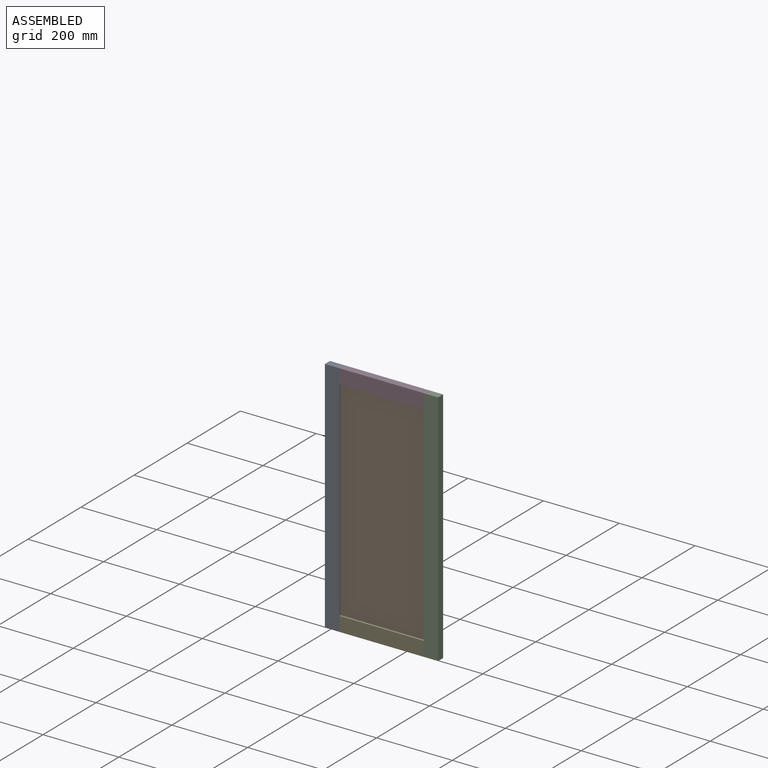
[diagram: assembled view]
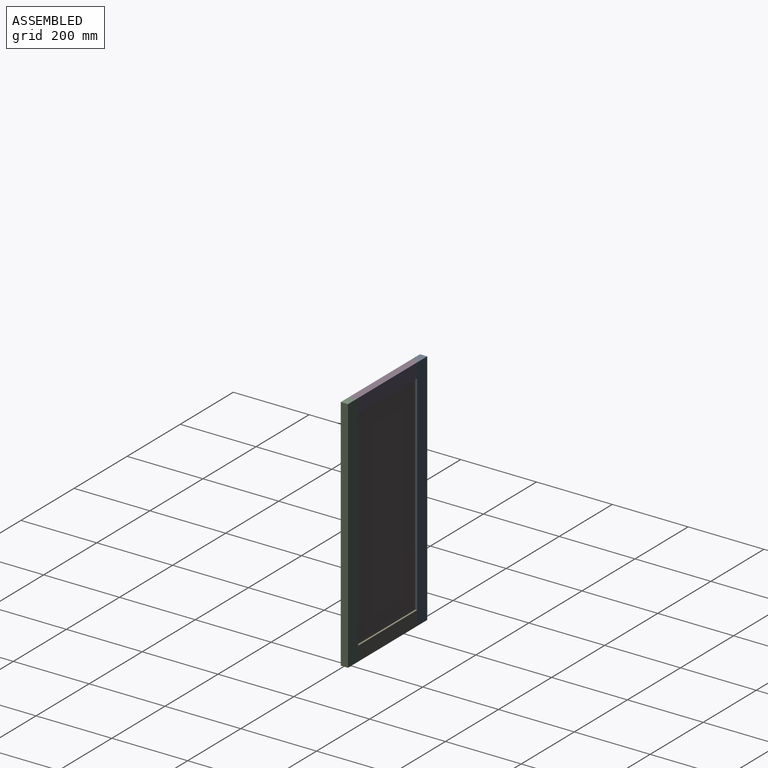
[diagram: assembled view, second angle]
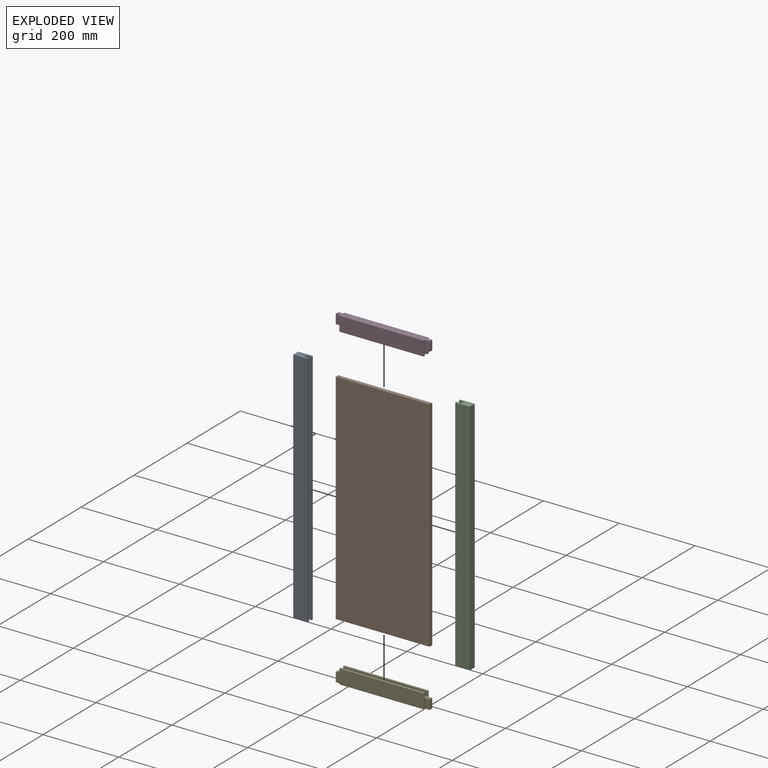
[diagram: exploded view]
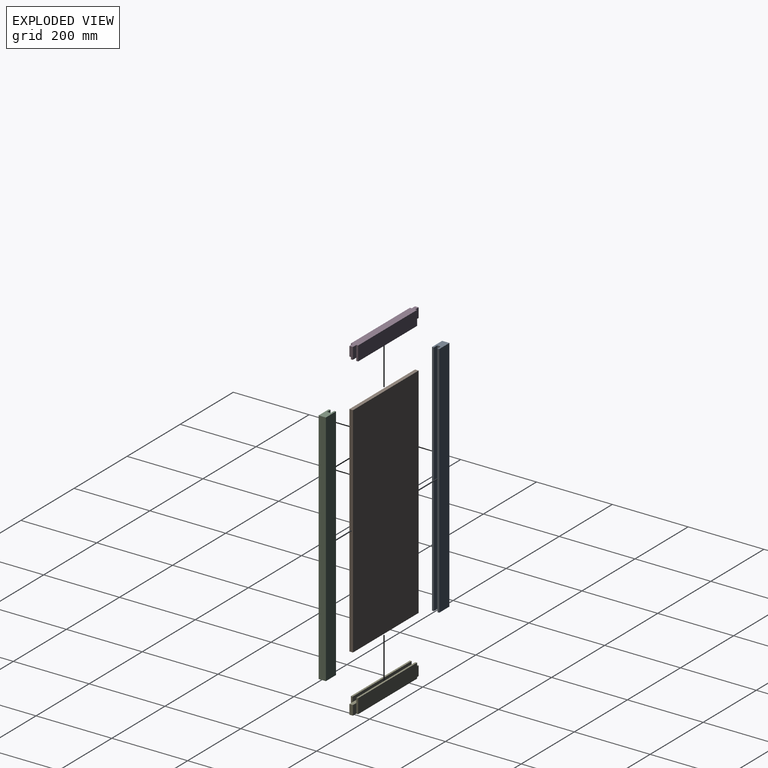
[diagram: exploded view, second angle]
ASSEMBLY  parts=5 mates=4
PART A: 10 faces, bbox 38.1x19.1x628.7 mm
  f0: plane 628.65x4.76mm, normal (1,0,0), area 2993.9mm2, adj f2,f4,f5,f7
  f1: plane 628.65x4.76mm, normal (1,0,0), area 2993.9mm2, adj f2,f4,f6,f8
  f2: plane 38.1x19.05mm, normal (0,0,1), area 604.8mm2, adj f0,f1,f3,f5,f6,f7,f8,f9
  f3: plane 628.65x19.05mm, normal (-1,0,0), area 11975.8mm2, adj f2,f4,f5,f6
  f4: plane 38.1x19.05mm, normal (0,0,-1), area 604.8mm2, adj f0,f1,f3,f5,f6,f7,f8,f9
  f5: plane 628.65x38.1mm, normal (0,-1,0), area 23951.6mm2, adj f0,f2,f3,f4
  f6: plane 628.65x38.1mm, normal (0,1,0), area 23951.6mm2, adj f1,f2,f3,f4
  f7: plane 628.65x12.7mm, normal (0,1,0), area 7983.9mm2, adj f0,f2,f4,f9
  f8: plane 628.65x12.7mm, normal (0,-1,0), area 7983.9mm2, adj f1,f2,f4,f9
  f9: plane 628.65x9.53mm, normal (1,0,0), area 5987.9mm2, adj f2,f4,f7,f8
PART B: 6 faces, bbox 9.5x247.7x577.9 mm
  f0: plane 247.65x9.53mm, normal (0,0,1), area 2358.9mm2, adj f1,f3,f4,f5
  f1: plane 577.85x9.53mm, normal (0,-1,0), area 5504mm2, adj f0,f2,f4,f5
  f2: plane 247.65x9.53mm, normal (0,0,-1), area 2358.9mm2, adj f1,f3,f4,f5
  f3: plane 577.85x9.53mm, normal (0,1,0), area 5504mm2, adj f0,f2,f4,f5
  f4: plane 577.85x247.65mm, normal (1,0,0), area 143104.6mm2, adj f0,f1,f2,f3
  f5: plane 577.85x247.65mm, normal (-1,0,0), area 143104.6mm2, adj f0,f1,f2,f3
PART C: same geometry as A
PART D: 18 faces, bbox 247.7x19.1x38.1 mm
  f0: plane 38.1x4.76mm, normal (1,0,0), area 181.5mm2, adj f2,f6,f7,f9,f15
  f1: plane 38.1x4.76mm, normal (-1,0,0), area 181.5mm2, adj f2,f6,f7,f9,f12
  f2: plane 222.25x4.76mm, normal (0,0,1), area 1058.5mm2, adj f0,f1,f7,f9
  f3: plane 222.25x4.76mm, normal (0,0,1), area 1058.5mm2, adj f4,f5,f8,f10
  f4: plane 38.1x4.76mm, normal (1,0,0), area 181.5mm2, adj f3,f6,f8,f10,f16
  f5: plane 38.1x4.76mm, normal (-1,0,0), area 181.5mm2, adj f3,f6,f8,f10,f14
  f6: plane 247.65x19.05mm, normal (0,0,-1), area 4475.8mm2, adj f0,f1,f4,f5,f7,f8,f12,f13
  f7: plane 222.25x38.1mm, normal (0,-1,0), area 8467.7mm2, adj f0,f1,f2,f6
  f8: plane 222.25x38.1mm, normal (0,1,0), area 8467.7mm2, adj f3,f4,f5,f6
  f9: plane 222.25x12.7mm, normal (0,1,0), area 2822.6mm2, adj f0,f1,f2,f11
  f10: plane 222.25x12.7mm, normal (0,-1,0), area 2822.6mm2, adj f3,f4,f5,f11
  f11: plane 247.65x9.53mm, normal (0,0,1), area 2358.9mm2, adj f9,f10,f12,f13,f14,f15,f16,f17
  f12: plane 25.4x12.7mm, normal (0,-1,0), area 322.6mm2, adj f1,f6,f11,f13
  f13: plane 25.4x9.53mm, normal (-1,0,0), area 241.9mm2, adj f6,f11,f12,f14
  f14: plane 25.4x12.7mm, normal (0,1,0), area 322.6mm2, adj f5,f6,f11,f13
  f15: plane 25.4x12.7mm, normal (0,-1,0), area 322.6mm2, adj f0,f6,f11,f17
  f16: plane 25.4x12.7mm, normal (0,1,0), area 322.6mm2, adj f4,f6,f11,f17
  f17: plane 25.4x9.53mm, normal (1,0,0), area 241.9mm2, adj f6,f11,f15,f16
PART E: same geometry as D
PLACE A t=(-447.87,-21.53,513.68)mm
PLACE B rot(axis=(0.71,0.71,0),180deg) t=(-422.47,-35.81,1116.93)mm
PLACE C rot(axis=(0,0,1),180deg) t=(-149.42,-40.58,513.68)mm
PLACE D rot(axis=(1,0,0),180deg) t=(-447.87,-40.58,1142.33)mm
PLACE E t=(-447.87,-21.53,513.68)mm
MATE fastened A.f4 <-> E.f6  axis (0,0,-1) through (-422.47,-31.05,513.68)mm
MATE fastened A.f2 <-> D.f6  axis (0,0,1) through (-422.47,-26.29,1142.33)mm
MATE fastened B.f0 <-> E.f11  axis (0,0,-1) through (-298.65,-31.05,539.08)mm
MATE fastened C.f4 <-> E.f6  axis (0,0,-1) through (-174.82,-31.05,513.68)mm
